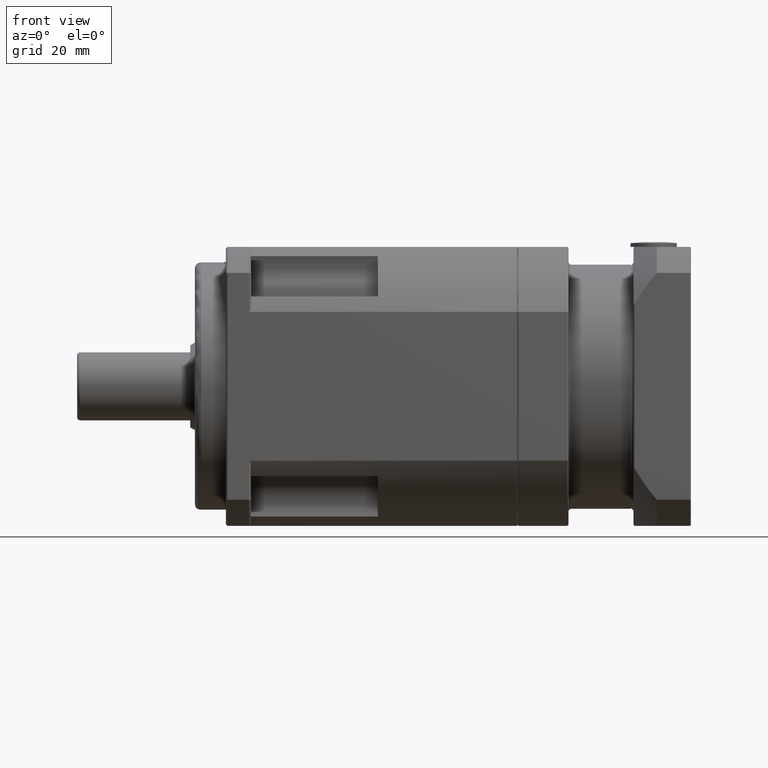
[diagram: clean part render]
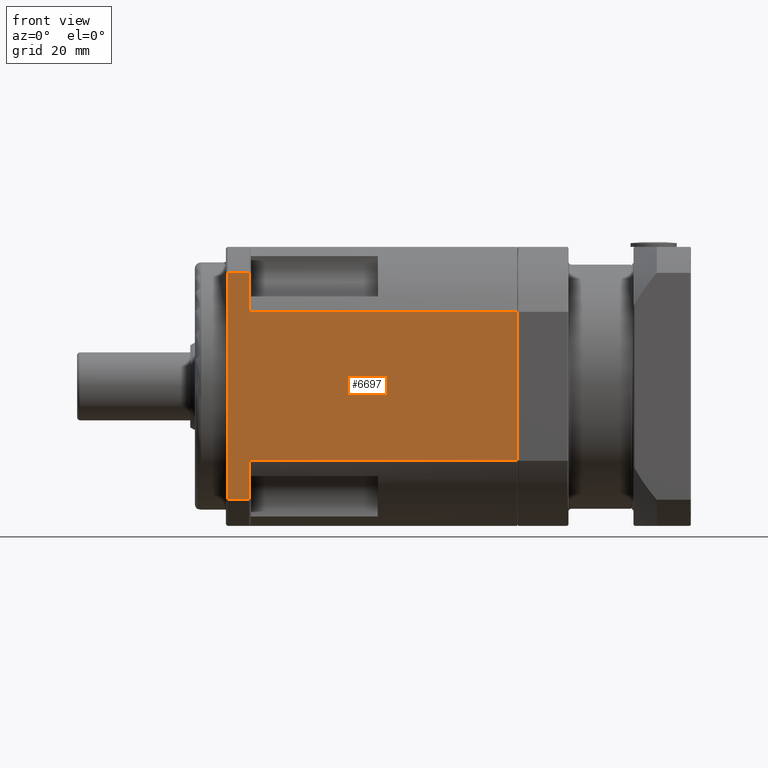
[diagram: same view with one face highlighted and labeled with its STEP entity id]
A machine part, front view. The second image highlights one B-rep face of the part: STEP entity #6697.
In plain terms, the highlighted planar face has unit normal (0, -1, -0).
Its self-contained STEP definition (entity closure, byte-faithful):
#512=LINE('',#11543,#827);
#514=LINE('',#11622,#829);
#525=LINE('',#11723,#840);
#529=LINE('',#11748,#844);
#530=LINE('',#11749,#845);
#531=LINE('',#11751,#846);
#532=LINE('',#11753,#847);
#533=LINE('',#11754,#848);
#827=VECTOR('',#8913,48.);
#829=VECTOR('',#9011,12.592348927064);
#840=VECTOR('',#9092,12.592348927064);
#844=VECTOR('',#9110,86.5);
#845=VECTOR('',#9111,86.5);
#846=VECTOR('',#9112,7.);
#847=VECTOR('',#9113,73.184697854128);
#848=VECTOR('',#9114,7.);
#1078=PLANE('',#7459);
#1669=FACE_OUTER_BOUND('',#2264,.T.);
#2264=EDGE_LOOP('',(#5479,#5480,#5481,#5482,#5483,#5484,#5485,#5486));
#3215=VERTEX_POINT('',#11528);
#3222=VERTEX_POINT('',#11541);
#3250=VERTEX_POINT('',#11619);
#3251=VERTEX_POINT('',#11621);
#3281=VERTEX_POINT('',#11721);
#3282=VERTEX_POINT('',#11722);
#3289=VERTEX_POINT('',#11750);
#3290=VERTEX_POINT('',#11752);
#3985=EDGE_CURVE('',#3222,#3215,#512,.T.);
#4013=EDGE_CURVE('',#3250,#3251,#514,.T.);
#4053=EDGE_CURVE('',#3281,#3282,#525,.T.);
#4063=EDGE_CURVE('',#3250,#3215,#529,.T.);
#4064=EDGE_CURVE('',#3222,#3282,#530,.T.);
#4065=EDGE_CURVE('',#3281,#3289,#531,.T.);
#4066=EDGE_CURVE('',#3290,#3289,#532,.T.);
#4067=EDGE_CURVE('',#3290,#3251,#533,.T.);
#5479=ORIENTED_EDGE('',*,*,#4063,.T.);
#5480=ORIENTED_EDGE('',*,*,#3985,.F.);
#5481=ORIENTED_EDGE('',*,*,#4064,.T.);
#5482=ORIENTED_EDGE('',*,*,#4053,.F.);
#5483=ORIENTED_EDGE('',*,*,#4065,.T.);
#5484=ORIENTED_EDGE('',*,*,#4066,.F.);
#5485=ORIENTED_EDGE('',*,*,#4067,.T.);
#5486=ORIENTED_EDGE('',*,*,#4013,.F.);
#6697=ADVANCED_FACE('',(#1669),#1078,.T.);
#7459=AXIS2_PLACEMENT_3D('',#11747,#9108,#9109);
#8913=DIRECTION('',(-4.77265694971786E-15,2.51342156963751E-15,-1.));
#9011=DIRECTION('',(-4.82820056512866E-15,1.29217624254978E-15,-1.));
#9092=DIRECTION('',(-4.82820056512866E-15,1.29217624254978E-15,-1.));
#9108=DIRECTION('center_axis',(6.10622663543786E-16,-1.,-1.29217624254979E-15));
#9109=DIRECTION('ref_axis',(4.79616346638068E-15,-1.4210854715202E-15,1.));
#9110=DIRECTION('',(1.,6.10622663543793E-16,-4.82820056512866E-15));
#9111=DIRECTION('',(-1.,-6.10622663543793E-16,4.82820056512866E-15));
#9112=DIRECTION('',(-1.,-6.10622663543793E-16,4.82820056512866E-15));
#9113=DIRECTION('',(4.82820056512866E-15,-1.29217624254978E-15,1.));
#9114=DIRECTION('',(1.,6.10622663543793E-16,-4.82820056512866E-15));
#11528=CARTESIAN_POINT('',(33.9702896556817,-77.3933275789246,-13.1496122451693));
#11541=CARTESIAN_POINT('',(33.9702896556819,-77.3933275789247,34.8503877548307));
#11543=CARTESIAN_POINT('',(33.970289655682,-77.3933275789248,55.8503877548307));
#11619=CARTESIAN_POINT('',(-52.5297103443183,-77.3933275789247,-13.1496122451688));
#11621=CARTESIAN_POINT('',(-52.5297103443183,-77.3933275789247,-25.7419611722328));
#11622=CARTESIAN_POINT('',(-52.5297103443183,-77.3933275789247,-11.6496122451688));
#11721=CARTESIAN_POINT('',(-52.529710344318,-77.3933275789248,47.4427366818952));
#11722=CARTESIAN_POINT('',(-52.529710344318,-77.3933275789248,34.8503877548312));
#11723=CARTESIAN_POINT('',(-52.5297103443183,-77.3933275789247,-11.6496122451688));
#11747=CARTESIAN_POINT('Origin',(-11.0297103443184,-77.3933275789246,-34.149612245169));
#11748=CARTESIAN_POINT('',(-11.0297103443183,-77.3933275789247,-13.149612245169));
#11749=CARTESIAN_POINT('',(-11.029710344318,-77.3933275789247,34.850387754831));
#11750=CARTESIAN_POINT('',(-59.529710344318,-77.3933275789248,47.4427366818952));
#11751=CARTESIAN_POINT('',(-11.029710344318,-77.3933275789247,47.442736681895));
#11752=CARTESIAN_POINT('',(-59.5297103443183,-77.3933275789247,-25.7419611722328));
#11753=CARTESIAN_POINT('',(-59.5297103443183,-77.3933275789247,-11.6496122451688));
#11754=CARTESIAN_POINT('',(-11.0297103443183,-77.3933275789246,-25.741961172233));